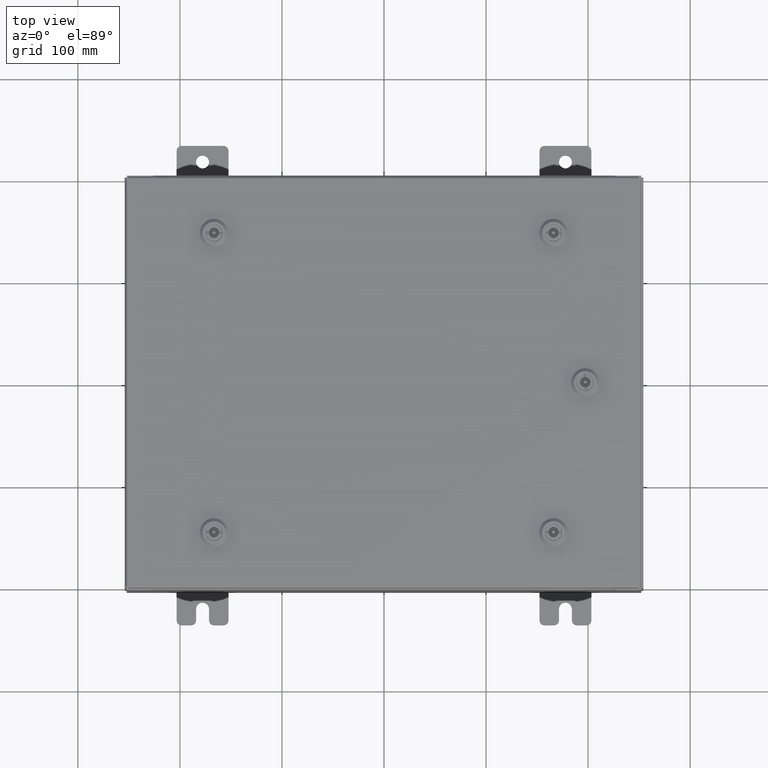
[diagram: clean part render]
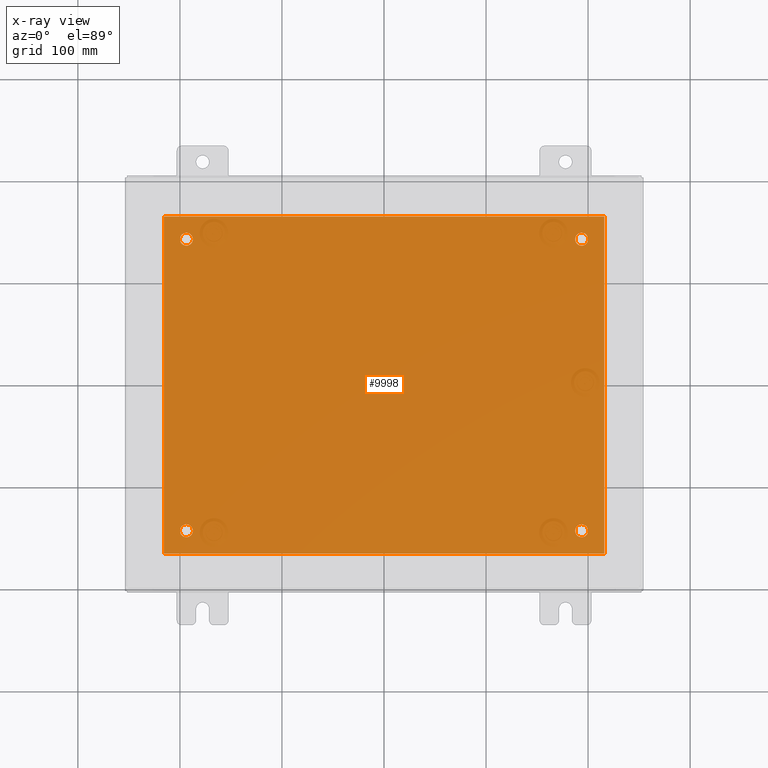
[diagram: x-ray — body ghosted, one internal face saturated and labeled with its STEP entity id]
A machine part, top view, then the same camera in x-ray: the body is ghosted and one INTERNAL B-rep face — a face not visible from any outside direction — is saturated and labeled: STEP entity #9998.
In plain terms, the highlighted planar face has unit normal (0, 0, -1).
Its self-contained STEP definition (entity closure, byte-faithful):
#249 = VERTEX_POINT ( 'NONE', #24427 ) ;
#519 = DIRECTION ( 'NONE',  ( -1.000000000000000000, 0.0000000000000000000, 0.0000000000000000000 ) ) ;
#620 = EDGE_CURVE ( 'NONE', #39161, #15440, #20548, .T. ) ;
#685 = CARTESIAN_POINT ( 'NONE',  ( 7.874999999999998200, -5.625000000000000000, -0.1039999999999999800 ) ) ;
#783 = DIRECTION ( 'NONE',  ( -0.0000000000000000000, -0.0000000000000000000, 1.000000000000000000 ) ) ;
#1102 = ORIENTED_EDGE ( 'NONE', *, *, #17174, .F. ) ;
#1648 = EDGE_LOOP ( 'NONE', ( #52901, #12737 ) ) ;
#1874 = CARTESIAN_POINT ( 'NONE',  ( -8.499999999999996400, -6.500000000000000000, -0.1039999999999999800 ) ) ;
#3978 = FACE_BOUND ( 'NONE', #17500, .T. ) ;
#4837 = DIRECTION ( 'NONE',  ( -0.0000000000000000000, -0.0000000000000000000, 1.000000000000000000 ) ) ;
#5690 = AXIS2_PLACEMENT_3D ( 'NONE', #37113, #7849, #41952 ) ;
#5719 = CARTESIAN_POINT ( 'NONE',  ( -7.625000000000000000, 5.625000000000000000, -0.1039999999999999800 ) ) ;
#6091 = DIRECTION ( 'NONE',  ( -0.0000000000000000000, -0.0000000000000000000, 1.000000000000000000 ) ) ;
#6188 = CARTESIAN_POINT ( 'NONE',  ( -7.375000000000000000, -5.625000000000000000, -0.1039999999999999800 ) ) ;
#7258 = VERTEX_POINT ( 'NONE', #25709 ) ;
#7849 = DIRECTION ( 'NONE',  ( -0.0000000000000000000, -0.0000000000000000000, 1.000000000000000000 ) ) ;
#9007 = ORIENTED_EDGE ( 'NONE', *, *, #37287, .F. ) ;
#9407 = CARTESIAN_POINT ( 'NONE',  ( 7.625000000000000000, 5.625000000000000000, -0.1039999999999999800 ) ) ;
#9880 = AXIS2_PLACEMENT_3D ( 'NONE', #58729, #29988, #519 ) ;
#9998 = ADVANCED_FACE ( 'NONE', ( #39884, #3978, #15529, #52587, #41390 ), #38445, .T. ) ;
#10699 = DIRECTION ( 'NONE',  ( -1.000000000000000000, 0.0000000000000000000, 0.0000000000000000000 ) ) ;
#10810 = VECTOR ( 'NONE', #36358, 39.37007874015748100 ) ;
#11217 = EDGE_LOOP ( 'NONE', ( #1102, #59898, #9007, #49176 ) ) ;
#11641 = CARTESIAN_POINT ( 'NONE',  ( 8.500000000000003600, -6.500000000000000000, -0.1039999999999999800 ) ) ;
#12379 = DIRECTION ( 'NONE',  ( -1.000000000000000000, -0.0000000000000000000, -0.0000000000000000000 ) ) ;
#12737 = ORIENTED_EDGE ( 'NONE', *, *, #13023, .T. ) ;
#13023 = EDGE_CURVE ( 'NONE', #47828, #40180, #14551, .T. ) ;
#13162 = EDGE_CURVE ( 'NONE', #59448, #42382, #37421, .T. ) ;
#13325 = VECTOR ( 'NONE', #62056, 39.37007874015748100 ) ;
#14441 = EDGE_CURVE ( 'NONE', #30900, #7258, #50145, .T. ) ;
#14529 = EDGE_CURVE ( 'NONE', #15440, #39161, #27636, .T. ) ;
#14551 = CIRCLE ( 'NONE', #16009, 0.2499999999999998100 ) ;
#14845 = LINE ( 'NONE', #57221, #13325 ) ;
#15065 = AXIS2_PLACEMENT_3D ( 'NONE', #5719, #39868, #10699 ) ;
#15440 = VERTEX_POINT ( 'NONE', #57154 ) ;
#15529 = FACE_BOUND ( 'NONE', #35813, .T. ) ;
#15988 = EDGE_LOOP ( 'NONE', ( #31256, #43910 ) ) ;
#16009 = AXIS2_PLACEMENT_3D ( 'NONE', #30247, #783, #35118 ) ;
#16024 = CARTESIAN_POINT ( 'NONE',  ( -7.874999999999999100, -5.625000000000000000, -0.1039999999999999800 ) ) ;
#16485 = AXIS2_PLACEMENT_3D ( 'NONE', #54309, #25530, #59145 ) ;
#17174 = EDGE_CURVE ( 'NONE', #42382, #58992, #25945, .T. ) ;
#17500 = EDGE_LOOP ( 'NONE', ( #29121, #49015 ) ) ;
#19024 = LINE ( 'NONE', #46329, #55993 ) ;
#19700 = AXIS2_PLACEMENT_3D ( 'NONE', #34188, #4837, #39011 ) ;
#20548 = CIRCLE ( 'NONE', #57298, 0.2499999999999987000 ) ;
#20942 = EDGE_CURVE ( 'NONE', #59298, #42151, #49569, .T. ) ;
#22641 = CARTESIAN_POINT ( 'NONE',  ( -7.874999999999999100, 5.625000000000000000, -0.1039999999999999800 ) ) ;
#24427 = CARTESIAN_POINT ( 'NONE',  ( -8.499999999999996400, 6.500000000000000000, -0.1039999999999999800 ) ) ;
#24644 = CARTESIAN_POINT ( 'NONE',  ( 7.375000000000000900, 5.625000000000000000, -0.1039999999999999800 ) ) ;
#25378 = CARTESIAN_POINT ( 'NONE',  ( -7.625000000000000000, -5.625000000000000000, -0.1039999999999999800 ) ) ;
#25530 = DIRECTION ( 'NONE',  ( -0.0000000000000000000, -0.0000000000000000000, 1.000000000000000000 ) ) ;
#25709 = CARTESIAN_POINT ( 'NONE',  ( 7.375000000000000900, -5.625000000000000000, -0.1039999999999999800 ) ) ;
#25945 = LINE ( 'NONE', #11641, #34248 ) ;
#26063 = CIRCLE ( 'NONE', #15065, 0.2499999999999998100 ) ;
#27003 = CARTESIAN_POINT ( 'NONE',  ( -8.499999999999996400, -6.500000000000000000, -0.1039999999999999800 ) ) ;
#27636 = CIRCLE ( 'NONE', #16485, 0.2499999999999987000 ) ;
#28078 = CARTESIAN_POINT ( 'NONE',  ( -7.375000000000000000, 5.625000000000000000, -0.1039999999999999800 ) ) ;
#29121 = ORIENTED_EDGE ( 'NONE', *, *, #14441, .T. ) ;
#29988 = DIRECTION ( 'NONE',  ( -0.0000000000000000000, -0.0000000000000000000, 1.000000000000000000 ) ) ;
#30242 = DIRECTION ( 'NONE',  ( -1.000000000000000000, 0.0000000000000000000, 0.0000000000000000000 ) ) ;
#30247 = CARTESIAN_POINT ( 'NONE',  ( -7.625000000000000000, 5.625000000000000000, -0.1039999999999999800 ) ) ;
#30900 = VERTEX_POINT ( 'NONE', #685 ) ;
#31256 = ORIENTED_EDGE ( 'NONE', *, *, #20942, .T. ) ;
#31488 = AXIS2_PLACEMENT_3D ( 'NONE', #38370, #40015, #38295 ) ;
#32964 = CARTESIAN_POINT ( 'NONE',  ( 8.500000000000003600, 6.500000000000000000, -0.1039999999999999800 ) ) ;
#33469 = AXIS2_PLACEMENT_3D ( 'NONE', #25378, #58988, #30242 ) ;
#34188 = CARTESIAN_POINT ( 'NONE',  ( -7.625000000000000000, -5.625000000000000000, -0.1039999999999999800 ) ) ;
#34248 = VECTOR ( 'NONE', #60043, 39.37007874015748100 ) ;
#35118 = DIRECTION ( 'NONE',  ( -1.000000000000000000, 0.0000000000000000000, 0.0000000000000000000 ) ) ;
#35813 = EDGE_LOOP ( 'NONE', ( #55389, #48630 ) ) ;
#36358 = DIRECTION ( 'NONE',  ( 1.000000000000000000, 0.0000000000000000000, 0.0000000000000000000 ) ) ;
#36974 = EDGE_CURVE ( 'NONE', #7258, #30900, #46710, .T. ) ;
#37113 = CARTESIAN_POINT ( 'NONE',  ( 7.625000000000000000, -5.625000000000000000, -0.1039999999999999800 ) ) ;
#37287 = EDGE_CURVE ( 'NONE', #249, #59448, #14845, .T. ) ;
#37421 = LINE ( 'NONE', #1874, #10810 ) ;
#37786 = CARTESIAN_POINT ( 'NONE',  ( 8.500000000000003600, -6.500000000000000000, -0.1039999999999999800 ) ) ;
#38295 = DIRECTION ( 'NONE',  ( -1.000000000000000000, 0.0000000000000000000, -0.0000000000000000000 ) ) ;
#38370 = CARTESIAN_POINT ( 'NONE',  ( 0.0000000000000000000, 0.0000000000000000000, -0.1039999999999999800 ) ) ;
#38445 = PLANE ( 'NONE',  #31488 ) ;
#39011 = DIRECTION ( 'NONE',  ( -1.000000000000000000, 0.0000000000000000000, 0.0000000000000000000 ) ) ;
#39161 = VERTEX_POINT ( 'NONE', #24644 ) ;
#39868 = DIRECTION ( 'NONE',  ( -0.0000000000000000000, -0.0000000000000000000, 1.000000000000000000 ) ) ;
#39884 = FACE_BOUND ( 'NONE', #15988, .T. ) ;
#40015 = DIRECTION ( 'NONE',  ( 0.0000000000000000000, 0.0000000000000000000, -1.000000000000000000 ) ) ;
#40180 = VERTEX_POINT ( 'NONE', #28078 ) ;
#41390 = FACE_OUTER_BOUND ( 'NONE', #11217, .T. ) ;
#41846 = EDGE_CURVE ( 'NONE', #42151, #59298, #56985, .T. ) ;
#41952 = DIRECTION ( 'NONE',  ( -1.000000000000000000, 0.0000000000000000000, 0.0000000000000000000 ) ) ;
#42151 = VERTEX_POINT ( 'NONE', #16024 ) ;
#42382 = VERTEX_POINT ( 'NONE', #37786 ) ;
#43910 = ORIENTED_EDGE ( 'NONE', *, *, #41846, .T. ) ;
#46329 = CARTESIAN_POINT ( 'NONE',  ( -8.499999999999996400, 6.500000000000000000, -0.1039999999999999800 ) ) ;
#46710 = CIRCLE ( 'NONE', #5690, 0.2499999999999987000 ) ;
#47467 = DIRECTION ( 'NONE',  ( -1.000000000000000000, 0.0000000000000000000, 0.0000000000000000000 ) ) ;
#47828 = VERTEX_POINT ( 'NONE', #22641 ) ;
#48630 = ORIENTED_EDGE ( 'NONE', *, *, #620, .T. ) ;
#49015 = ORIENTED_EDGE ( 'NONE', *, *, #36974, .T. ) ;
#49176 = ORIENTED_EDGE ( 'NONE', *, *, #56769, .F. ) ;
#49569 = CIRCLE ( 'NONE', #33469, 0.2499999999999998100 ) ;
#50145 = CIRCLE ( 'NONE', #9880, 0.2499999999999987000 ) ;
#52587 = FACE_BOUND ( 'NONE', #1648, .T. ) ;
#52901 = ORIENTED_EDGE ( 'NONE', *, *, #54730, .T. ) ;
#54309 = CARTESIAN_POINT ( 'NONE',  ( 7.625000000000000000, 5.625000000000000000, -0.1039999999999999800 ) ) ;
#54730 = EDGE_CURVE ( 'NONE', #40180, #47828, #26063, .T. ) ;
#55389 = ORIENTED_EDGE ( 'NONE', *, *, #14529, .T. ) ;
#55993 = VECTOR ( 'NONE', #12379, 39.37007874015748100 ) ;
#56769 = EDGE_CURVE ( 'NONE', #58992, #249, #19024, .T. ) ;
#56985 = CIRCLE ( 'NONE', #19700, 0.2499999999999998100 ) ;
#57154 = CARTESIAN_POINT ( 'NONE',  ( 7.874999999999998200, 5.625000000000000000, -0.1039999999999999800 ) ) ;
#57221 = CARTESIAN_POINT ( 'NONE',  ( -8.499999999999996400, -6.500000000000000000, -0.1039999999999999800 ) ) ;
#57298 = AXIS2_PLACEMENT_3D ( 'NONE', #9407, #6091, #47467 ) ;
#58729 = CARTESIAN_POINT ( 'NONE',  ( 7.625000000000000000, -5.625000000000000000, -0.1039999999999999800 ) ) ;
#58988 = DIRECTION ( 'NONE',  ( -0.0000000000000000000, -0.0000000000000000000, 1.000000000000000000 ) ) ;
#58992 = VERTEX_POINT ( 'NONE', #32964 ) ;
#59145 = DIRECTION ( 'NONE',  ( -1.000000000000000000, 0.0000000000000000000, 0.0000000000000000000 ) ) ;
#59298 = VERTEX_POINT ( 'NONE', #6188 ) ;
#59448 = VERTEX_POINT ( 'NONE', #27003 ) ;
#59898 = ORIENTED_EDGE ( 'NONE', *, *, #13162, .F. ) ;
#60043 = DIRECTION ( 'NONE',  ( 0.0000000000000000000, 1.000000000000000000, 0.0000000000000000000 ) ) ;
#62056 = DIRECTION ( 'NONE',  ( -0.0000000000000000000, -1.000000000000000000, -0.0000000000000000000 ) ) ;